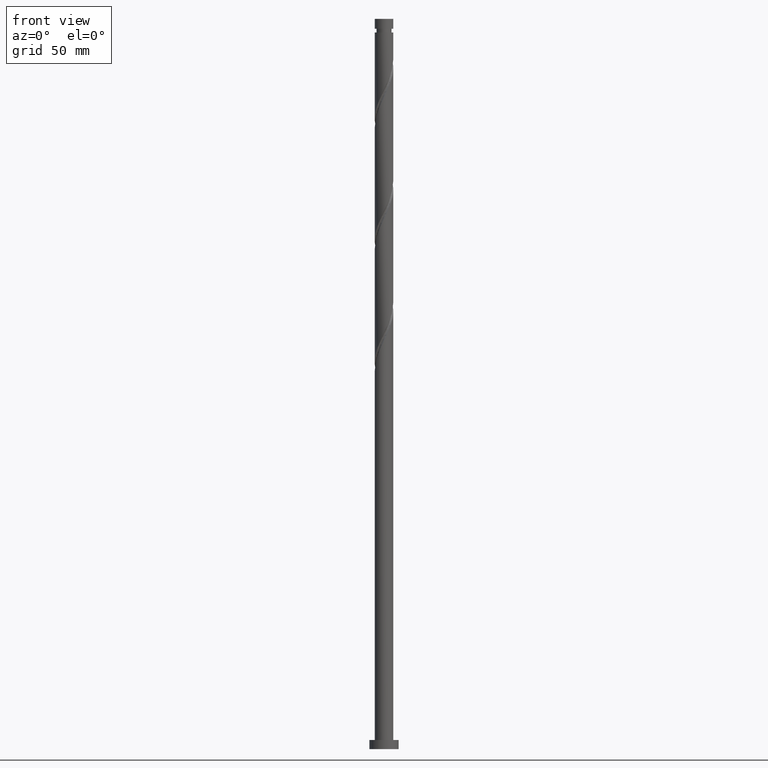
[diagram: clean part render]
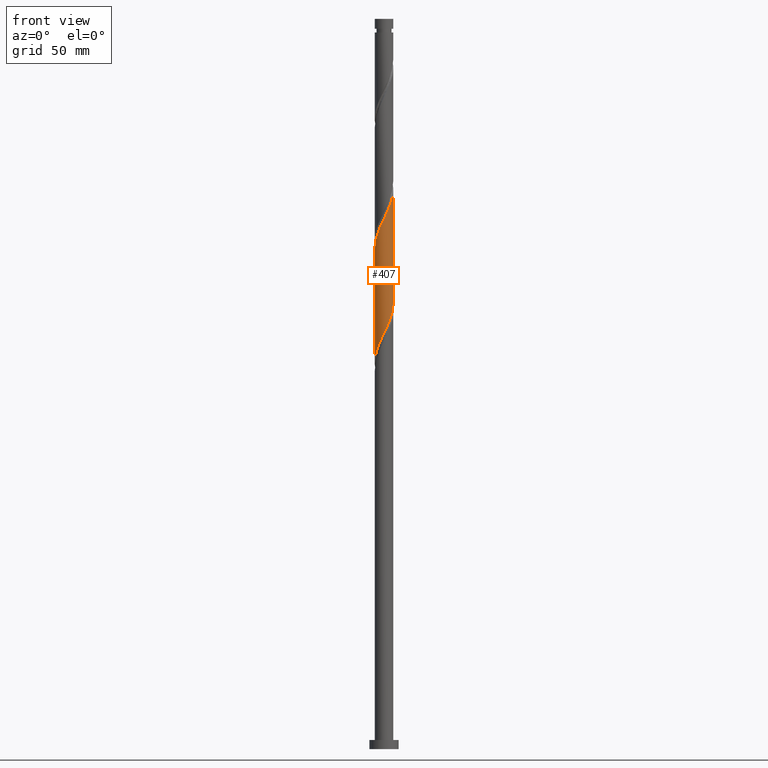
[diagram: same view with one face highlighted and labeled with its STEP entity id]
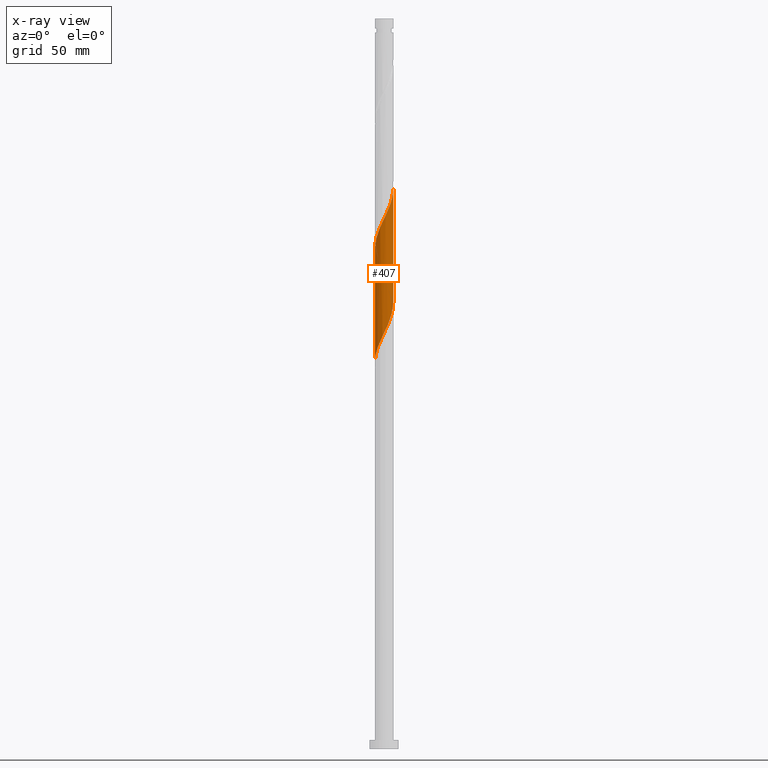
[diagram: x-ray of the same camera — body ghosted, the highlighted face saturated]
A machine part, front view. The second image highlights one B-rep face of the part: STEP entity #407.
The next image is the same camera in x-ray: the body ghosted, the highlighted face saturated — about 0% of this face is hidden behind the body in this view.
In plain terms, the highlighted cylindrical surface (edge-blend (fillet) strip) has radius 5.1 mm, axis along (-0, -0, -1).
Its self-contained STEP definition (entity closure, byte-faithful):
#55 = FACE_OUTER_BOUND ( 'NONE', #889, .T. ) ;
#83 = CARTESIAN_POINT ( 'NONE',  ( 5.099999999999999645, 4.275246810310268444E-15, 244.6471866363922345 ) ) ;
#92 = CARTESIAN_POINT ( 'NONE',  ( 1.629005779183731795, -4.862475711757238805, 231.4106322817596322 ) ) ;
#122 = CARTESIAN_POINT ( 'NONE',  ( 1.105724163441033081, -4.978692004370487645, 230.2995211706484895 ) ) ;
#127 = CARTESIAN_POINT ( 'NONE',  ( 3.758811671682795286, -3.446931217303483397, 299.1884100595372615 ) ) ;
#133 = CARTESIAN_POINT ( 'NONE',  ( -3.758811671682789957, -3.446931217303477180, 219.1884100595374036 ) ) ;
#141 = CARTESIAN_POINT ( 'NONE',  ( -3.820951375190253074, -3.377918084920325192, 281.4106322817595469 ) ) ;
#154 = CARTESIAN_POINT ( 'NONE',  ( -1.105724163441039520, -4.978692004370494750, 288.0772989484263462 ) ) ;
#165 = CARTESIAN_POINT ( 'NONE',  ( -5.100000000000010303, 8.924204006137095080E-15, 273.7296334826825159 ) ) ;
#182 = CARTESIAN_POINT ( 'NONE',  ( -1.629005779183739344, -4.862475711757246799, 286.9661878373152604 ) ) ;
#214 = CARTESIAN_POINT ( 'NONE',  ( 0.000000000000000000, 0.000000000000000000, 400.0000000000000000 ) ) ;
#221 = DIRECTION ( 'NONE',  ( -0.000000000000000000, -0.000000000000000000, -1.000000000000000000 ) ) ;
#227 = CARTESIAN_POINT ( 'NONE',  ( 3.820951375190243748, -3.377918084920323860, 236.9661878373151183 ) ) ;
#228 = EDGE_CURVE ( 'NONE', #744, #1462, #478, .T. ) ;
#236 = CARTESIAN_POINT ( 'NONE',  ( 5.076705030977432642, -0.4868942682435490332, 243.6328545039818607 ) ) ;
#244 = CARTESIAN_POINT ( 'NONE',  ( -4.835838561039001782, -1.620081915079675916, 214.7439656150929181 ) ) ;
#266 = AXIS2_PLACEMENT_3D ( 'NONE', #214, #221, #1607 ) ;
#274 = CARTESIAN_POINT ( 'NONE',  ( -4.665561090286799661, -2.128349028905950568, 215.8550767262040324 ) ) ;
#291 = CARTESIAN_POINT ( 'NONE',  ( -3.035145759683210098, -4.098522931188395724, 283.6328545039818323 ) ) ;
#305 = CARTESIAN_POINT ( 'NONE',  ( 5.006116031791212784, -1.111814801253410590, 304.7439656150929750 ) ) ;
#319 = CARTESIAN_POINT ( 'NONE',  ( -4.864535835123834140, -1.531760787067011576, 276.9661878373151467 ) ) ;
#363 = VERTEX_POINT ( 'NONE', #1777 ) ;
#381 = CARTESIAN_POINT ( 'NONE',  ( -4.393329915788831030, -2.590106609974752505, 216.9661878373152319 ) ) ;
#397 = CARTESIAN_POINT ( 'NONE',  ( 2.116689710232769972, -4.640002658468494801, 232.5217433928706896 ) ) ;
#407 = ADVANCED_FACE ( 'NONE', ( #55 ), #523, .T. ) ;
#455 = CARTESIAN_POINT ( 'NONE',  ( 0.4895762179909043388, -5.104668941549578065, 291.4106322817596606 ) ) ;
#469 = CARTESIAN_POINT ( 'NONE',  ( 3.396524602074725951, -3.841998243563404802, 298.0772989484262894 ) ) ;
#478 =( BOUNDED_CURVE ( )  B_SPLINE_CURVE ( 2, ( #1080, #1551, #592, #803, #319, #1264, #1238, #1581, #141, #780, #291, #766, #949, #182, #154, #1071, #1870, #455, #1395, #790, #1882, #1998, #634, #469, #127, #1837, #1405, #1092, #1695, #305, #1418, #646, #1120 ),
 .UNSPECIFIED., .F., .T. ) 
 B_SPLINE_CURVE_WITH_KNOTS ( ( 3, 2, 2, 2, 2, 2, 2, 2, 2, 2, 2, 2, 2, 2, 2, 2, 3 ),
 ( 0.3045286012773112949, 0.3083333333333333481, 0.3166666666666666519, 0.3249999999999999556, 0.3333333333333333703, 0.3416666666666666741, 0.3499999999999999778, 0.3583333333333332815, 0.3666666666666666963, 0.3750000000000000000, 0.3833333333333333037, 0.3916666666666667185, 0.4000000000000000222, 0.4083333333333333259, 0.4166666666666666297, 0.4250000000000000444, 0.4295286012773114059 ),
 .UNSPECIFIED. ) 
 CURVE ( )  GEOMETRIC_REPRESENTATION_ITEM ( )  RATIONAL_B_SPLINE_CURVE ( ( 0.9066196499552303667, 0.9068171577856430909, 0.9090909090909421453, 0.9041108139711903080, 0.9090909090909421453, 0.9041108139711903080, 0.9090909090909421453, 0.9041108139711903080, 0.9090909090909421453, 0.9041108139711903080, 0.9090909090909421453, 0.9041108139711903080, 0.9090909090909421453, 0.9041108139711903080, 0.9090909090909421453, 0.9041108139711903080, 0.9090909090909421453, 0.9041108139711903080, 0.9090909090909421453, 0.9041108139711903080, 0.9090909090909421453, 0.9041108139711903080, 0.9090909090909421453, 0.9041108139711903080, 0.9090909090909421453, 0.9041108139711903080, 0.9090909090909421453, 0.9041108139711903080, 0.9090909090909421453, 0.9041108139711903080, 0.9090909090909421453, 0.9063845652764892513, 0.9066196499552303667 ) ) 
 REPRESENTATION_ITEM ( '' )  );
#523 = CYLINDRICAL_SURFACE ( 'NONE', #266, 5.100000000000001421 ) ;
#542 = LINE ( 'NONE', #758, #1884 ) ;
#576 = VECTOR ( 'NONE', #1820, 1000.000000000000000 ) ;
#592 = CARTESIAN_POINT ( 'NONE',  ( -5.076705030977442412, -0.4868942682435451474, 274.7439656150929181 ) ) ;
#634 = CARTESIAN_POINT ( 'NONE',  ( 2.960015320744664891, -4.153108390224959479, 296.9661878373150898 ) ) ;
#646 = CARTESIAN_POINT ( 'NONE',  ( 5.100000000000010303, -0.2905660609768122571, 306.4573755066311946 ) ) ;
#659 = ORIENTED_EDGE ( 'NONE', *, *, #228, .F. ) ;
#733 = CARTESIAN_POINT ( 'NONE',  ( 5.100000000000001421, 6.245698675651501825E-16, 400.0000000000000000 ) ) ;
#737 = CARTESIAN_POINT ( 'NONE',  ( -5.006116031791203902, -1.111814801253403262, 213.6328545039818607 ) ) ;
#744 = VERTEX_POINT ( 'NONE', #165 ) ;
#748 = CARTESIAN_POINT ( 'NONE',  ( 4.703541288989194769, -2.043044105940181154, 240.2995211706484895 ) ) ;
#758 = CARTESIAN_POINT ( 'NONE',  ( -5.100000000000001421, 0.000000000000000000, 400.0000000000000000 ) ) ;
#766 = CARTESIAN_POINT ( 'NONE',  ( -2.604373641281813256, -4.417529605179761454, 284.7439656150930318 ) ) ;
#779 = ORIENTED_EDGE ( 'NONE', *, *, #1212, .F. ) ;
#780 = CARTESIAN_POINT ( 'NONE',  ( -3.465917878084604720, -3.779516257197033546, 282.5217433928708033 ) ) ;
#790 = CARTESIAN_POINT ( 'NONE',  ( 1.540198153706607842, -4.891331058450442804, 293.6328545039818891 ) ) ;
#803 = CARTESIAN_POINT ( 'NONE',  ( -5.025530381258464629, -1.020477468193842885, 275.8550767262040608 ) ) ;
#871 = CARTESIAN_POINT ( 'NONE',  ( 3.465917878084596282, -3.779516257197027773, 235.8550767262040324 ) ) ;
#889 = EDGE_LOOP ( 'NONE', ( #1750, #659, #1723, #779 ) ) ;
#917 = CARTESIAN_POINT ( 'NONE',  ( -2.523506039414606050, -4.464218536886502164, 222.5217433928706612 ) ) ;
#925 = VERTEX_POINT ( 'NONE', #1730 ) ;
#949 = CARTESIAN_POINT ( 'NONE',  ( -2.116689710232775745, -4.640002658468502794, 285.8550767262040608 ) ) ;
#1011 = CARTESIAN_POINT ( 'NONE',  ( 4.439763080642545212, -2.509682009291898552, 239.1884100595374036 ) ) ;
#1062 = CARTESIAN_POINT ( 'NONE',  ( -5.099999999999999645, -6.517509123410059360E-15, 211.3138533030588349 ) ) ;
#1071 = CARTESIAN_POINT ( 'NONE',  ( -0.5824425476983398076, -5.094908296983747142, 289.1884100595373184 ) ) ;
#1075 = DIRECTION ( 'NONE',  ( -0.000000000000000000, -0.000000000000000000, -1.000000000000000000 ) ) ;
#1080 = CARTESIAN_POINT ( 'NONE',  ( -5.100000000000010303, 8.924204006137096658E-15, 273.7296334826825159 ) ) ;
#1092 = CARTESIAN_POINT ( 'NONE',  ( 4.665561090286807655, -2.128349028905956786, 302.5217433928707464 ) ) ;
#1120 = CARTESIAN_POINT ( 'NONE',  ( 5.100000000000010303, 3.617516531800965792E-15, 307.0629668160158872 ) ) ;
#1172 = CARTESIAN_POINT ( 'NONE',  ( 5.100000000000010303, 3.617516531800965792E-15, 307.0629668160158872 ) ) ;
#1175 = CARTESIAN_POINT ( 'NONE',  ( -1.014887185848756923, -4.998000000000000220, 225.8550767262040324 ) ) ;
#1185 = CARTESIAN_POINT ( 'NONE',  ( -5.066997856243808052, -0.5792518664800759831, 212.5217433928707180 ) ) ;
#1202 = EDGE_CURVE ( 'NONE', #744, #925, #542, .T. ) ;
#1211 = LINE ( 'NONE', #733, #576 ) ;
#1212 = EDGE_CURVE ( 'NONE', #363, #925, #1796, .T. ) ;
#1233 = CARTESIAN_POINT ( 'NONE',  ( -2.960015320744664002, -4.153108390224947932, 221.4106322817595753 ) ) ;
#1238 = CARTESIAN_POINT ( 'NONE',  ( -4.439763080642554094, -2.509682009291900329, 279.1884100595372615 ) ) ;
#1264 = CARTESIAN_POINT ( 'NONE',  ( -4.703541288989206315, -2.043044105940181154, 278.0772989484262325 ) ) ;
#1338 = CARTESIAN_POINT ( 'NONE',  ( 0.04643316485371448699, -5.099788619266650613, 228.0772989484262894 ) ) ;
#1388 = CARTESIAN_POINT ( 'NONE',  ( 5.100000000000000533, -0.2440043963624230761, 244.1386381108281398 ) ) ;
#1395 = CARTESIAN_POINT ( 'NONE',  ( 1.014887185848756701, -4.998000000000008214, 292.5217433928706896 ) ) ;
#1399 = CARTESIAN_POINT ( 'NONE',  ( -1.540198153706608508, -4.891331058450428593, 224.7439656150929181 ) ) ;
#1405 = CARTESIAN_POINT ( 'NONE',  ( 4.393329915788834583, -2.590106609974761387, 301.4106322817594901 ) ) ;
#1418 = CARTESIAN_POINT ( 'NONE',  ( 5.066997856243816045, -0.5792518664800790917, 305.8550767262039471 ) ) ;
#1462 = VERTEX_POINT ( 'NONE', #1172 ) ;
#1537 = CARTESIAN_POINT ( 'NONE',  ( 5.025530381258454860, -1.020477468193842663, 242.5217433928707180 ) ) ;
#1545 = CARTESIAN_POINT ( 'NONE',  ( 0.5824425476983365879, -5.094908296983735596, 229.1884100595373468 ) ) ;
#1551 = CARTESIAN_POINT ( 'NONE',  ( -5.100000000000012079, -0.2440043963624112799, 274.2381820082466106 ) ) ;
#1581 = CARTESIAN_POINT ( 'NONE',  ( -4.175984872295902761, -2.976319912643621279, 280.2995211706484611 ) ) ;
#1607 = DIRECTION ( 'NONE',  ( -1.000000000000000000, 0.000000000000000000, 0.000000000000000000 ) ) ;
#1642 = CARTESIAN_POINT ( 'NONE',  ( -3.396524602074721955, -3.841998243563394144, 220.2995211706484895 ) ) ;
#1681 = CARTESIAN_POINT ( 'NONE',  ( 2.604373641281805707, -4.417529605179755237, 233.6328545039818039 ) ) ;
#1695 = CARTESIAN_POINT ( 'NONE',  ( 4.835838561039007999, -1.620081915079683466, 303.6328545039818323 ) ) ;
#1723 = ORIENTED_EDGE ( 'NONE', *, *, #1202, .T. ) ;
#1730 = CARTESIAN_POINT ( 'NONE',  ( -5.099999999999999645, -6.517509123410059360E-15, 211.3138533030588633 ) ) ;
#1750 = ORIENTED_EDGE ( 'NONE', *, *, #1889, .F. ) ;
#1774 = CARTESIAN_POINT ( 'NONE',  ( -4.121098741290859735, -3.051864191043557994, 218.0772989484262325 ) ) ;
#1777 = CARTESIAN_POINT ( 'NONE',  ( 5.099999999999999645, 4.275246810310268444E-15, 244.6471866363922345 ) ) ;
#1786 = CARTESIAN_POINT ( 'NONE',  ( -5.100000000000000533, -0.2905660609768013769, 211.9194446124434421 ) ) ;
#1796 =( BOUNDED_CURVE ( )  B_SPLINE_CURVE ( 2, ( #83, #1388, #236, #1537, #1949, #748, #1011, #2004, #227, #871, #1797, #1681, #397, #92, #122, #1545, #1338, #1991, #1175, #1399, #1942, #917, #1233, #1642, #133, #1774, #381, #274, #244, #737, #1185, #1786, #1062 ),
 .UNSPECIFIED., .F., .T. ) 
 B_SPLINE_CURVE_WITH_KNOTS ( ( 3, 2, 2, 2, 2, 2, 2, 2, 2, 2, 2, 2, 2, 2, 2, 2, 3 ),
 ( 0.8045286012773114059, 0.8083333333333333481, 0.8166666666666666519, 0.8249999999999999556, 0.8333333333333333703, 0.8416666666666666741, 0.8499999999999999778, 0.8583333333333332815, 0.8666666666666666963, 0.8750000000000000000, 0.8833333333333333037, 0.8916666666666667185, 0.9000000000000000222, 0.9083333333333333259, 0.9166666666666666297, 0.9250000000000000444, 0.9295286012773115170 ),
 .UNSPECIFIED. ) 
 CURVE ( )  GEOMETRIC_REPRESENTATION_ITEM ( )  RATIONAL_B_SPLINE_CURVE ( ( 0.9066196499552228172, 0.9068171577856356524, 0.9090909090909344847, 0.9041108139711828695, 0.9090909090909344847, 0.9041108139711828695, 0.9090909090909344847, 0.9041108139711828695, 0.9090909090909344847, 0.9041108139711828695, 0.9090909090909344847, 0.9041108139711828695, 0.9090909090909344847, 0.9041108139711828695, 0.9090909090909344847, 0.9041108139711828695, 0.9090909090909344847, 0.9041108139711828695, 0.9090909090909344847, 0.9041108139711828695, 0.9090909090909344847, 0.9041108139711828695, 0.9090909090909344847, 0.9041108139711828695, 0.9090909090909344847, 0.9041108139711828695, 0.9090909090909344847, 0.9041108139711828695, 0.9090909090909344847, 0.9041108139711828695, 0.9090909090909344847, 0.9063845652764817018, 0.9066196499552229282 ) ) 
 REPRESENTATION_ITEM ( '' )  );
#1797 = CARTESIAN_POINT ( 'NONE',  ( 3.035145759683200772, -4.098522931188392171, 234.7439656150929181 ) ) ;
#1820 = DIRECTION ( 'NONE',  ( -0.000000000000000000, -0.000000000000000000, -1.000000000000000000 ) ) ;
#1837 = CARTESIAN_POINT ( 'NONE',  ( 4.121098741290865064, -3.051864191043566876, 300.2995211706485179 ) ) ;
#1870 = CARTESIAN_POINT ( 'NONE',  ( -0.04643316485371892788, -5.099788619266663048, 290.2995211706484042 ) ) ;
#1882 = CARTESIAN_POINT ( 'NONE',  ( 2.031852096560607279, -4.677774797668475593, 294.7439656150928045 ) ) ;
#1884 = VECTOR ( 'NONE', #1075, 1000.000000000000000 ) ;
#1889 = EDGE_CURVE ( 'NONE', #1462, #363, #1211, .T. ) ;
#1942 = CARTESIAN_POINT ( 'NONE',  ( -2.031852096560608167, -4.677774797668464934, 223.6328545039818323 ) ) ;
#1949 = CARTESIAN_POINT ( 'NONE',  ( 4.864535835123822594, -1.531760787067013796, 241.4106322817596322 ) ) ;
#1991 = CARTESIAN_POINT ( 'NONE',  ( -0.4895762179909078915, -5.104668941549565631, 226.9661878373151467 ) ) ;
#1998 = CARTESIAN_POINT ( 'NONE',  ( 2.523506039414608271, -4.464218536886513711, 295.8550767262041177 ) ) ;
#2004 = CARTESIAN_POINT ( 'NONE',  ( 4.175984872295889438, -2.976319912643619059, 238.0772989484262894 ) ) ;